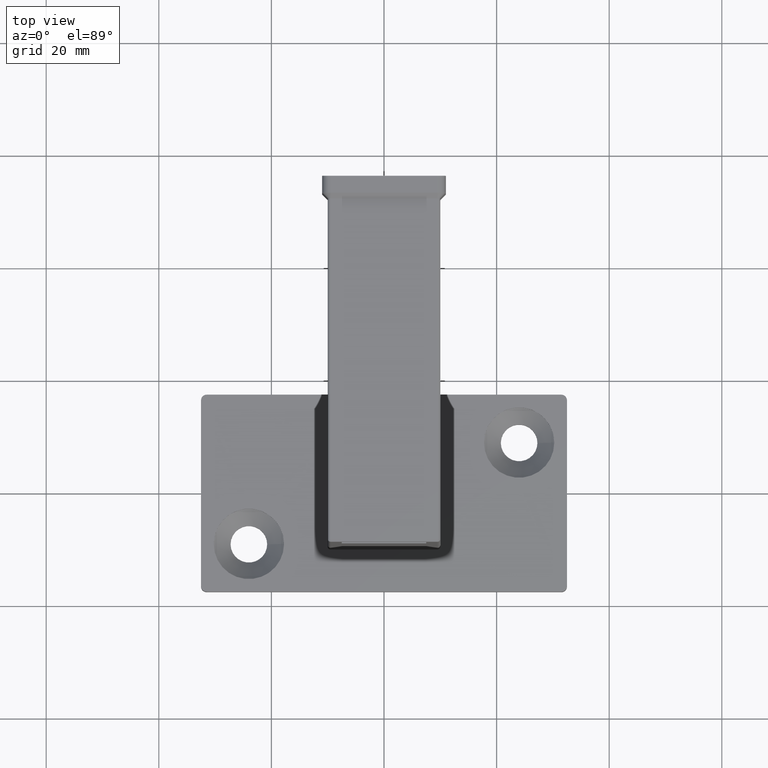
[diagram: clean part render]
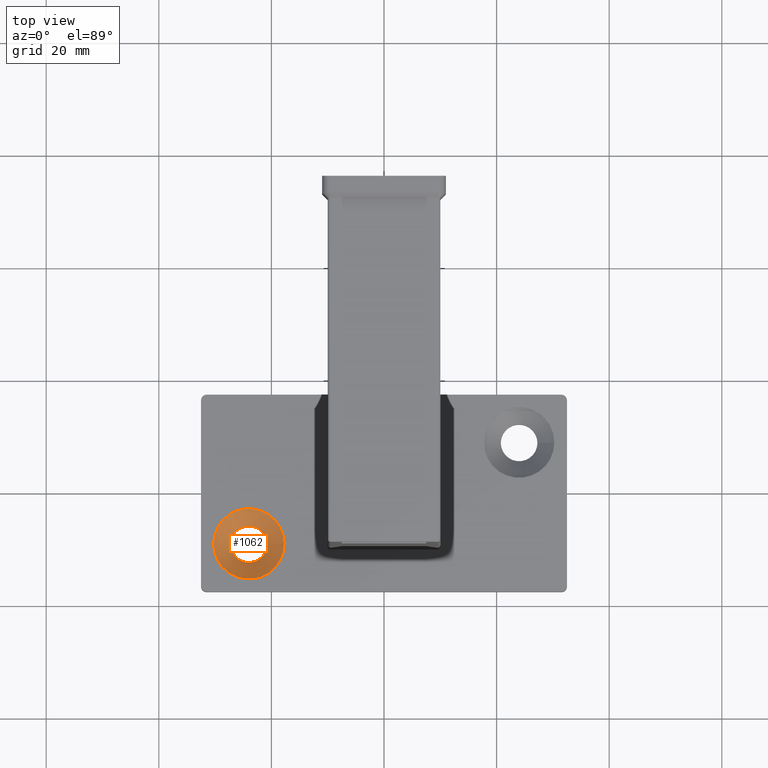
[diagram: same view with one face highlighted and labeled with its STEP entity id]
A machine part, top view. The second image highlights one B-rep face of the part: STEP entity #1062.
In plain terms, the highlighted conical surface has half-angle 45 deg.
Its self-contained STEP definition (entity closure, byte-faithful):
#563 = CIRCLE ( 'NONE', #4179, 3.249999999999999556 ) ;
#1062 = ADVANCED_FACE ( 'NONE', ( #8704, #7718 ), #11167, .F. ) ;
#1076 = CIRCLE ( 'NONE', #7343, 6.249999999999808153 ) ;
#1667 = DIRECTION ( 'NONE',  ( -0.000000000000000000, -0.000000000000000000, 1.000000000000000000 ) ) ;
#2455 = AXIS2_PLACEMENT_3D ( 'NONE', #4024, #2887, #10138 ) ;
#2769 = VERTEX_POINT ( 'NONE', #10243 ) ;
#2887 = DIRECTION ( 'NONE',  ( -0.000000000000000000, -0.000000000000000000, 1.000000000000000000 ) ) ;
#3271 = EDGE_CURVE ( 'NONE', #6004, #6004, #563, .T. ) ;
#3804 = DIRECTION ( 'NONE',  ( 1.000000000000000000, 0.000000000000000000, 0.000000000000000000 ) ) ;
#4005 = DIRECTION ( 'NONE',  ( -0.000000000000000000, -0.000000000000000000, 1.000000000000000000 ) ) ;
#4024 = CARTESIAN_POINT ( 'NONE',  ( -24.00000000000000000, -9.000000000000000000, 5.000000000000110134 ) ) ;
#4179 = AXIS2_PLACEMENT_3D ( 'NONE', #12224, #1667, #3804 ) ;
#6004 = VERTEX_POINT ( 'NONE', #7136 ) ;
#6208 = ORIENTED_EDGE ( 'NONE', *, *, #8761, .T. ) ;
#6231 = ORIENTED_EDGE ( 'NONE', *, *, #3271, .F. ) ;
#7136 = CARTESIAN_POINT ( 'NONE',  ( -20.75000000000000000, -9.000000000000000000, 2.000000000000218492 ) ) ;
#7343 = AXIS2_PLACEMENT_3D ( 'NONE', #10211, #4005, #7782 ) ;
#7718 = FACE_OUTER_BOUND ( 'NONE', #11447, .T. ) ;
#7782 = DIRECTION ( 'NONE',  ( 1.000000000000000000, 0.000000000000000000, 0.000000000000000000 ) ) ;
#8704 = FACE_BOUND ( 'NONE', #10011, .T. ) ;
#8761 = EDGE_CURVE ( 'NONE', #2769, #2769, #1076, .T. ) ;
#10011 = EDGE_LOOP ( 'NONE', ( #6231 ) ) ;
#10138 = DIRECTION ( 'NONE',  ( 1.000000000000000000, 0.000000000000000000, 0.000000000000000000 ) ) ;
#10211 = CARTESIAN_POINT ( 'NONE',  ( -24.00000000000000000, -9.000000000000000000, 5.000000000000110134 ) ) ;
#10243 = CARTESIAN_POINT ( 'NONE',  ( -17.75000000000019185, -9.000000000000000000, 5.000000000000110134 ) ) ;
#11167 = CONICAL_SURFACE ( 'NONE', #2455, 6.249999999999808153, 0.7853981633974344012 ) ;
#11447 = EDGE_LOOP ( 'NONE', ( #6208 ) ) ;
#12224 = CARTESIAN_POINT ( 'NONE',  ( -24.00000000000000000, -9.000000000000000000, 2.000000000000218492 ) ) ;